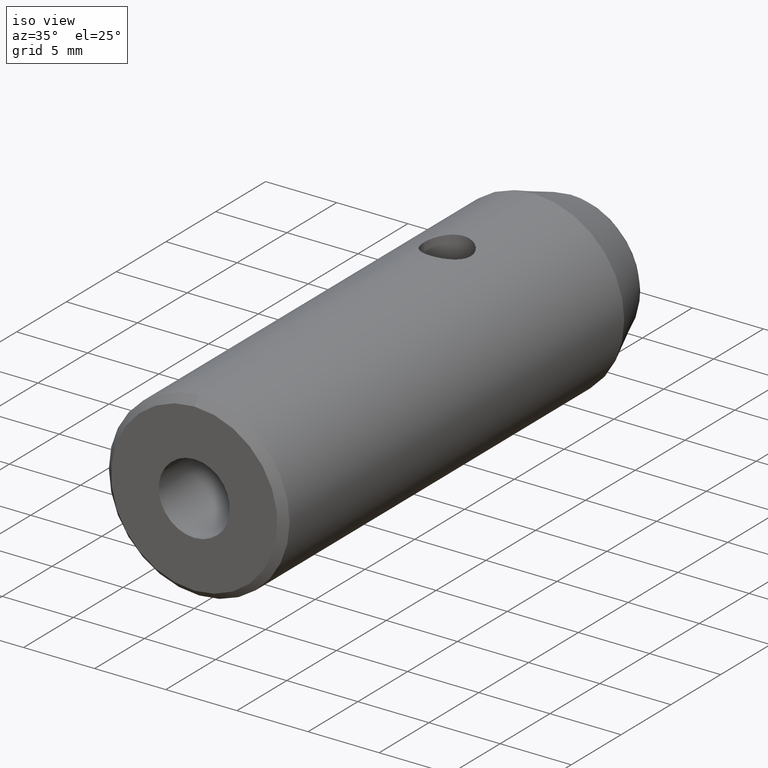
[diagram: clean part render]
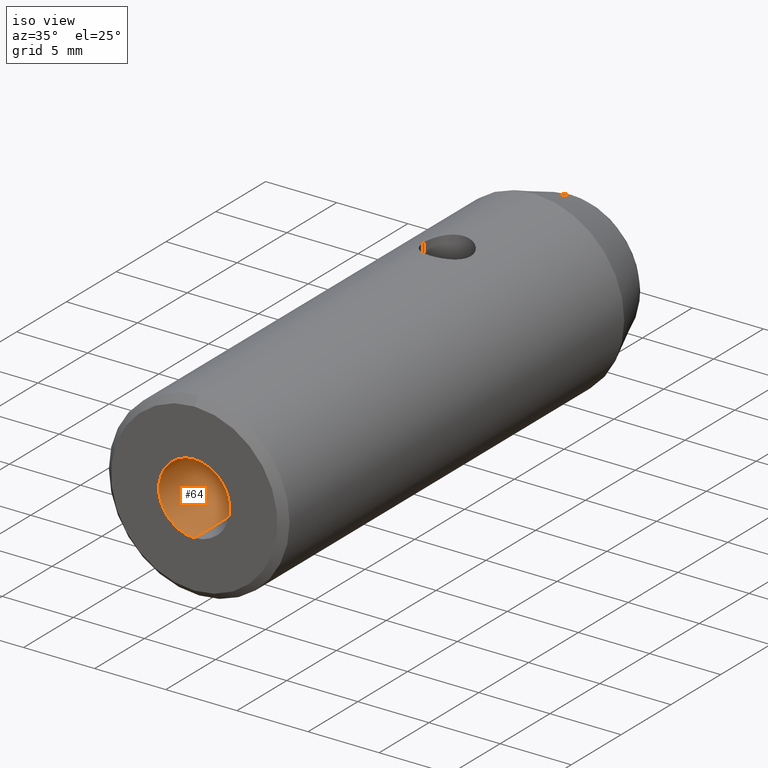
[diagram: same view with one face highlighted and labeled with its STEP entity id]
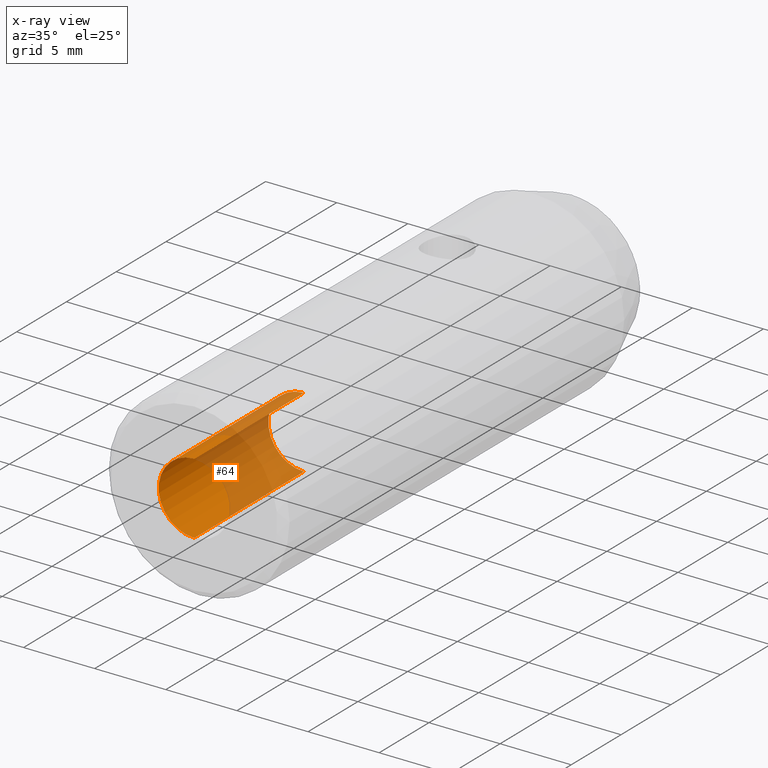
[diagram: x-ray of the same camera — body ghosted, the highlighted face saturated]
A machine part, iso view. The second image highlights one B-rep face of the part: STEP entity #64.
The next image is the same camera in x-ray: the body ghosted, the highlighted face saturated — about 55% of this face is hidden behind the body in this view.
In plain terms, the highlighted cylindrical surface (partial cylindrical patch) has radius 2.5 mm, axis along (-0, -1, -0).
Its self-contained STEP definition (entity closure, byte-faithful):
#30 = ORIENTED_EDGE ( 'NONE', *, *, #476, .T. ) ;
#35 = CARTESIAN_POINT ( 'NONE',  ( 0.0000000000000000000, 1.040949779275261000E-016, -2.499999999999998200 ) ) ;
#59 = EDGE_CURVE ( 'NONE', #107, #121, #130, .T. ) ;
#64 = ADVANCED_FACE ( 'NONE', ( #276 ), #748, .F. ) ;
#87 = AXIS2_PLACEMENT_3D ( 'NONE', #267, #756, #404 ) ;
#107 = VERTEX_POINT ( 'NONE', #141 ) ;
#121 = VERTEX_POINT ( 'NONE', #35 ) ;
#126 = VERTEX_POINT ( 'NONE', #771 ) ;
#130 = CIRCLE ( 'NONE', #456, 2.499999999999998200 ) ;
#137 = DIRECTION ( 'NONE',  ( -0.0000000000000000000, -1.000000000000000000, -0.0000000000000000000 ) ) ;
#141 = CARTESIAN_POINT ( 'NONE',  ( 3.061616997868381200E-016, 1.040949779275261000E-016, 2.499999999999998200 ) ) ;
#151 = CARTESIAN_POINT ( 'NONE',  ( 0.0000000000000000000, 0.0000000000000000000, -2.499999999999998200 ) ) ;
#189 = CIRCLE ( 'NONE', #721, 2.499999999999998200 ) ;
#214 = ORIENTED_EDGE ( 'NONE', *, *, #59, .T. ) ;
#254 = CARTESIAN_POINT ( 'NONE',  ( 0.0000000000000000000, 11.00000000000000000, 0.0000000000000000000 ) ) ;
#267 = CARTESIAN_POINT ( 'NONE',  ( 0.0000000000000000000, 0.0000000000000000000, 0.0000000000000000000 ) ) ;
#276 = FACE_OUTER_BOUND ( 'NONE', #369, .T. ) ;
#308 = DIRECTION ( 'NONE',  ( -0.0000000000000000000, -1.000000000000000000, -0.0000000000000000000 ) ) ;
#340 = CARTESIAN_POINT ( 'NONE',  ( 0.0000000000000000000, 1.040949779275261000E-016, 0.0000000000000000000 ) ) ;
#369 = EDGE_LOOP ( 'NONE', ( #602, #30, #214, #394 ) ) ;
#394 = ORIENTED_EDGE ( 'NONE', *, *, #697, .F. ) ;
#404 = DIRECTION ( 'NONE',  ( 0.0000000000000000000, 0.0000000000000000000, -1.000000000000000000 ) ) ;
#427 = LINE ( 'NONE', #151, #671 ) ;
#456 = AXIS2_PLACEMENT_3D ( 'NONE', #340, #137, #579 ) ;
#476 = EDGE_CURVE ( 'NONE', #502, #107, #719, .T. ) ;
#486 = EDGE_CURVE ( 'NONE', #502, #126, #189, .T. ) ;
#502 = VERTEX_POINT ( 'NONE', #681 ) ;
#579 = DIRECTION ( 'NONE',  ( 0.0000000000000000000, 0.0000000000000000000, -1.000000000000000000 ) ) ;
#602 = ORIENTED_EDGE ( 'NONE', *, *, #486, .F. ) ;
#605 = VECTOR ( 'NONE', #690, 1000.000000000000000 ) ;
#624 = CARTESIAN_POINT ( 'NONE',  ( 3.061616997868381200E-016, 0.0000000000000000000, 2.499999999999998200 ) ) ;
#671 = VECTOR ( 'NONE', #776, 1000.000000000000000 ) ;
#681 = CARTESIAN_POINT ( 'NONE',  ( 3.061616997914722800E-016, 11.00000000000000000, 2.500000000037839100 ) ) ;
#690 = DIRECTION ( 'NONE',  ( -0.0000000000000000000, -1.000000000000000000, -0.0000000000000000000 ) ) ;
#697 = EDGE_CURVE ( 'NONE', #126, #121, #427, .T. ) ;
#719 = LINE ( 'NONE', #624, #605 ) ;
#721 = AXIS2_PLACEMENT_3D ( 'NONE', #254, #308, #739 ) ;
#739 = DIRECTION ( 'NONE',  ( 0.0000000000000000000, 0.0000000000000000000, -1.000000000000000000 ) ) ;
#748 = CYLINDRICAL_SURFACE ( 'NONE', #87, 2.499999999999998200 ) ;
#756 = DIRECTION ( 'NONE',  ( -0.0000000000000000000, -1.000000000000000000, -0.0000000000000000000 ) ) ;
#771 = CARTESIAN_POINT ( 'NONE',  ( 0.0000000000000000000, 11.00000000000000000, -2.500000000037839100 ) ) ;
#776 = DIRECTION ( 'NONE',  ( -0.0000000000000000000, -1.000000000000000000, -0.0000000000000000000 ) ) ;